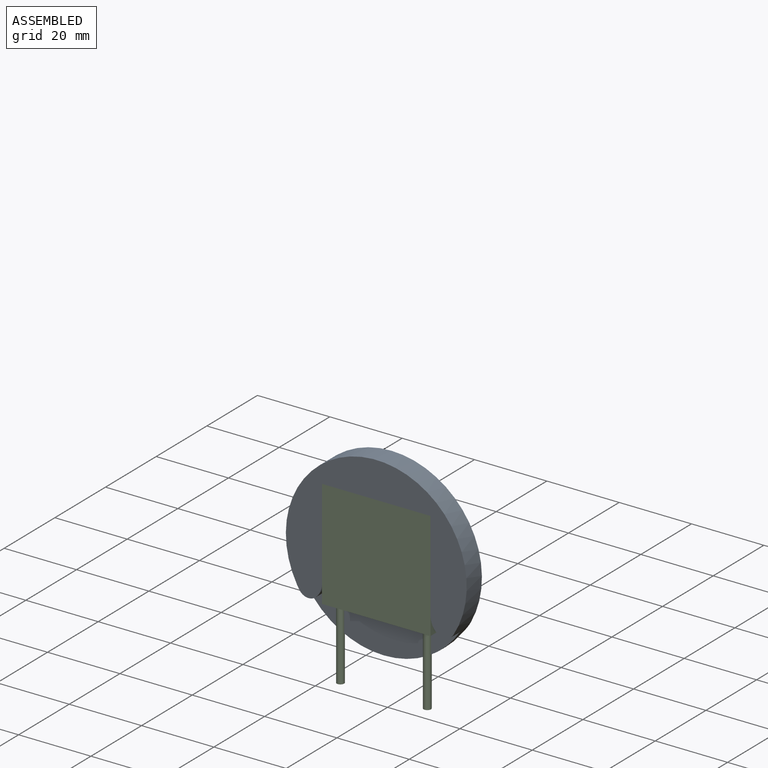
[diagram: assembled view]
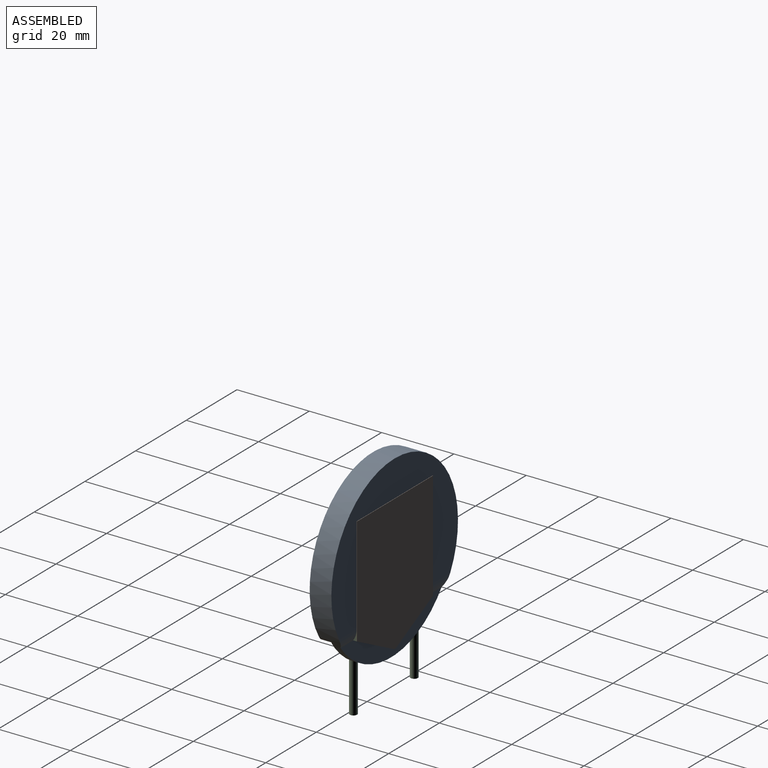
[diagram: assembled view, second angle]
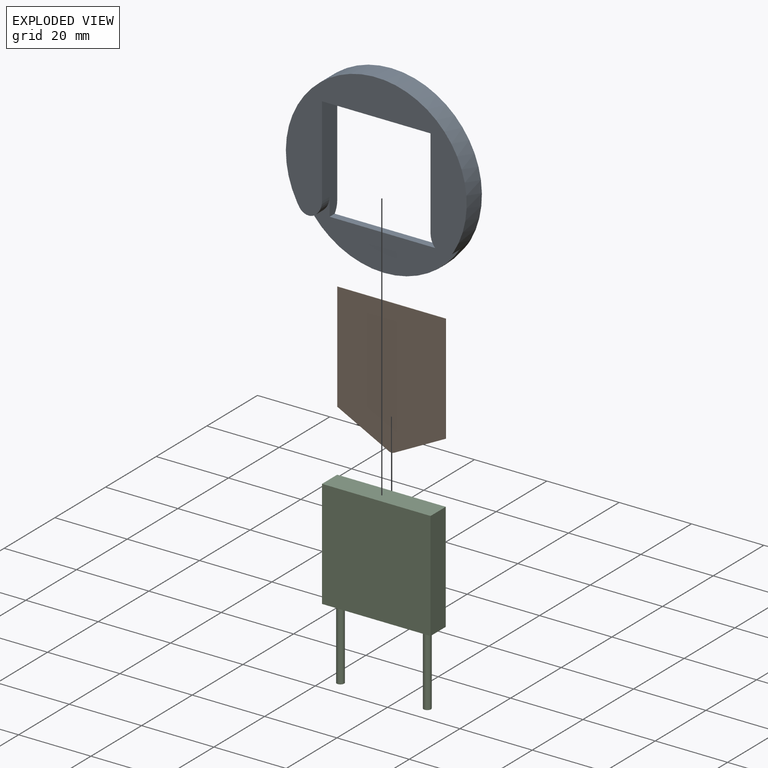
[diagram: exploded view]
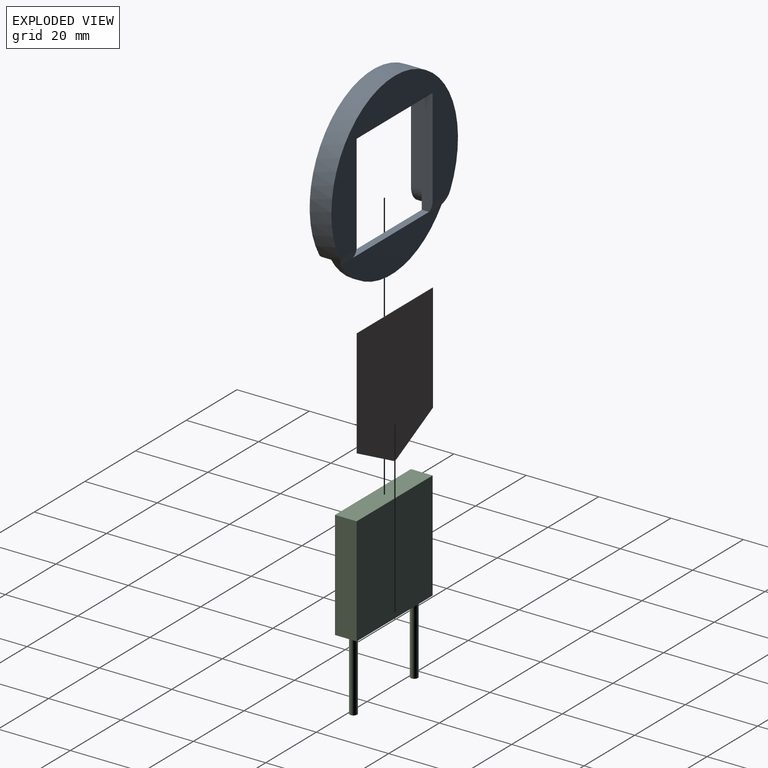
[diagram: exploded view, second angle]
ASSEMBLY  parts=3 mates=6
PART A: 15 faces, bbox 50x50x6 mm
  f0: plane 30x2mm, normal (0,1,0), area 60mm2, adj f3,f5,f7,f8
  f1: plane 50x39.54mm, normal (0,0,1), area 770.8mm2, adj f3,f4,f5,f6,f9,f10,f13,f14
  f2: plane 50x37mm, normal (0,0,-1), area 747.8mm2, adj f3,f4,f5,f6,f11,f12
  f3: plane 30x6mm, normal (1,0,0), area 164mm2, adj f0,f1,f2,f4,f8,f10,f12
  f4: plane 30x6mm, normal (0,-1,0), area 180mm2, adj f1,f2,f3,f5
  f5: plane 30x6mm, normal (-1,0,0), area 164mm2, adj f0,f1,f2,f4,f8,f9,f11
  f6: cylinder r=25mm len=50mm, axis (0,0,-1), area 741mm2, adj f1,f2,f7,f8,f11,f12,f13,f14
  f7: plane 40x10mm, normal (0,0,-1), area 279.6mm2, adj f0,f6,f11,f12
  f8: plane 42.56x15mm, normal (0,0,1), area 292.7mm2, adj f0,f3,f5,f6,f9,f10,f13,f14
  f9: cylinder r=5mm len=3.86mm, axis (0,0,-1), area 13.2mm2, adj f1,f5,f8,f13
  f10: cylinder r=5mm len=3.86mm, axis (0,0,1), area 13.2mm2, adj f1,f3,f8,f14
  f11: cylinder r=5mm len=6.93mm, axis (1,0,0), area 19.2mm2, adj f2,f5,f6,f7
  f12: cylinder r=5mm len=6.93mm, axis (1,0,0), area 19.2mm2, adj f2,f3,f6,f7
  f13: cylinder r=3mm len=4.46mm, axis (0,0,-1), area 15.4mm2, adj f1,f6,f8,f9
  f14: cylinder r=3mm len=4.46mm, axis (0,0,-1), area 15.4mm2, adj f1,f6,f8,f10
PART B: 8 faces, bbox 30x37.5x0.1 mm
  f0: plane 30x0.1mm, normal (-1,0,0), area 3mm2, adj f1,f5,f6,f7
  f1: plane 14.32x7.34mm, normal (-0.46,-0.89,0), area 1.6mm2, adj f0,f2,f6,f7
  f2: cylinder r=1.5mm len=1.37mm, axis (0,0,-1), area 0.1mm2, adj f1,f3,f6,f7
  f3: plane 14.32x7.34mm, normal (0.46,-0.89,0), area 1.6mm2, adj f2,f4,f6,f7
  f4: plane 30x0.1mm, normal (1,0,0), area 3mm2, adj f3,f5,f6,f7
  f5: plane 30x0.1mm, normal (0,1,0), area 3mm2, adj f0,f4,f6,f7
  f6: plane 37.5x30mm, normal (0,0,1), area 1015.2mm2, adj f0,f1,f2,f3,f4,f5
  f7: plane 37.5x30mm, normal (0,0,-1), area 1015.2mm2, adj f0,f1,f2,f3,f4,f5
PART C: 10 faces, bbox 30x50x6 mm
  f0: plane 30x6mm, normal (0,1,0), area 180mm2, adj f1,f3,f4,f5
  f1: plane 30x6mm, normal (-1,0,0), area 180mm2, adj f0,f2,f4,f5
  f2: plane 30x6mm, normal (0,-1,0), area 173.7mm2, adj f1,f3,f4,f5,f6,f8
  f3: plane 30x6mm, normal (1,0,0), area 180mm2, adj f0,f2,f4,f5
  f4: plane 30x30mm, normal (0,0,1), area 900mm2, adj f0,f1,f2,f3
  f5: plane 30x30mm, normal (0,0,-1), area 900mm2, adj f0,f1,f2,f3
  f6: cylinder r=1mm len=20mm, axis (0,1,0), area 125.7mm2, adj f2,f7
  f7: plane 2x2mm, normal (0,-1,0), area 3.1mm2, adj f6
  f8: cylinder r=1mm len=20mm, axis (0,1,0), area 125.7mm2, adj f2,f9
  f9: plane 2x2mm, normal (0,-1,0), area 3.1mm2, adj f8
PLACE A rot(axis=(1,0,0),90deg) t=(37.13,65.65,-88.74)mm
PLACE B rot(axis=(1,0,0),90deg) t=(37.13,65.75,-88.74)mm
PLACE C rot(axis=(1,0,0),90deg) t=(37.13,65.65,-88.74)mm
MATE planar B.f5 <-> C.f0  axis (0,0,1) through (37.13,65.7,-73.74)mm
MATE planar B.f4 <-> C.f3  axis (1,0,0) through (52.13,65.7,-88.74)mm
MATE planar A.f4 <-> C.f0  axis (0,0,-1) through (37.13,62.65,-73.74)mm
MATE planar B.f6 <-> C.f5  axis (0,-1,0) through (52.13,65.65,-73.74)mm
MATE planar C.f1 <-> A.f3  axis (-1,0,0) through (22.13,62.65,-88.74)mm
MATE planar C.f4 <-> A.f1  axis (0,-1,0) through (37.13,59.65,-88.74)mm
